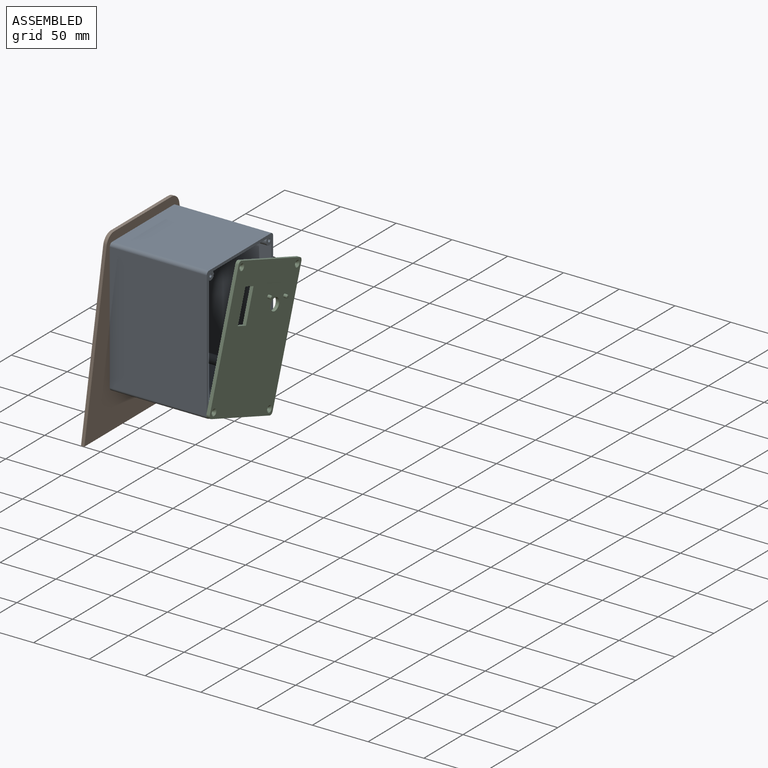
[diagram: assembled view]
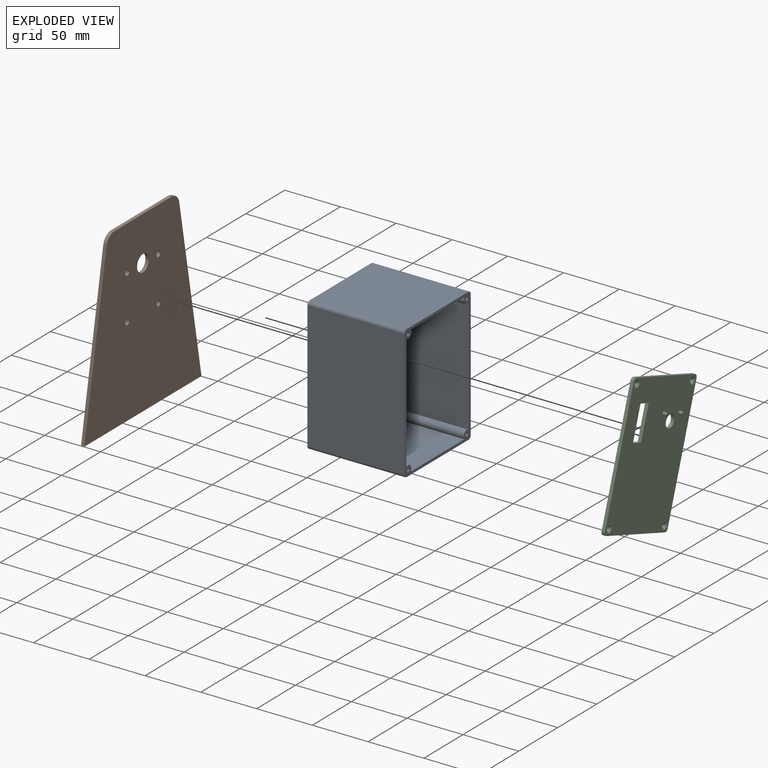
[diagram: exploded view]
GUIDED TOUR — MATED ASSEMBLY (Onshape document 524143315a06c9e09538e839, AutoMate assembly 524143315a06c9e09538e839_eda230ae620e30a8f7436bb0_d0ec72eaa8de58888dcd32df_default)

This assembly has 3 components, labeled P0..P2 below (a component is one placed occurrence of a part; the same part can appear more than once), held together by 2 mates. A mate is a constraint between two components; its type names the relative motion it leaves free:
  FASTENED — locks the two components together rigidly (no relative motion),
  REVOLUTE — leaves rotation about the listed axis free (a hinge).
Axis/direction vectors are unit vectors and 'through' points are millimeter coordinates, both in the assembly's world frame.

MATES
  1. REVOLUTE "Revolute 1": P0 <-> P2, axis (1.000, 0.000, 0.000) through (-23.34, -68.43, 7.96) mm
  2. FASTENED "Fastened 1": P0 <-> P1, direction (-1.000, 0.000, 0.000) through (-110.34, -30.93, 90.46) mm

ASSEMBLY ORDER
  1. P1 — the base component [order verified]
  2. P0 [order verified]
  3. P2 [order verified]
Order-tag legend:
  [order verified] — this step's position reverses a verified removal order: the component was checked to insert without passing through the ones already placed.

Of the 3 components, 1 carries the full construction recipe — the FeatureScript program that regenerates the part's solid from scratch; the rest are supplied as boundary geometry only.
Each toured component is shown spotlighted twice — in the assembled view, then in the exploded view, where a leader line traces a displaced component back to its assembled socket (saturated green if recipe-attached, orange if geometry-only; every other component desaturated gray) — followed by its recipe or geometry summary and the mates that hold it.
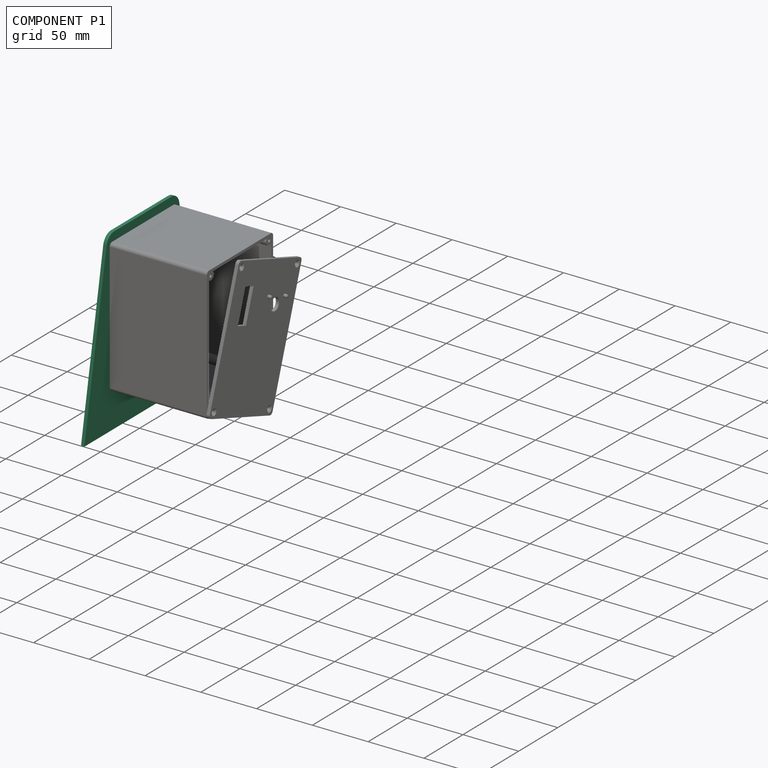
[diagram: component P1 — assembled]
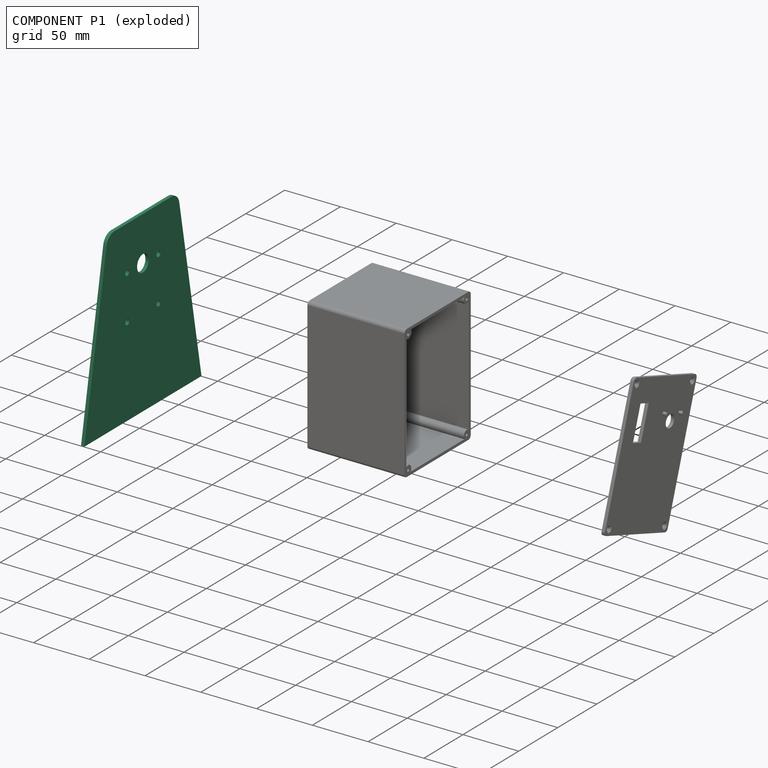
[diagram: component P1 — exploded]
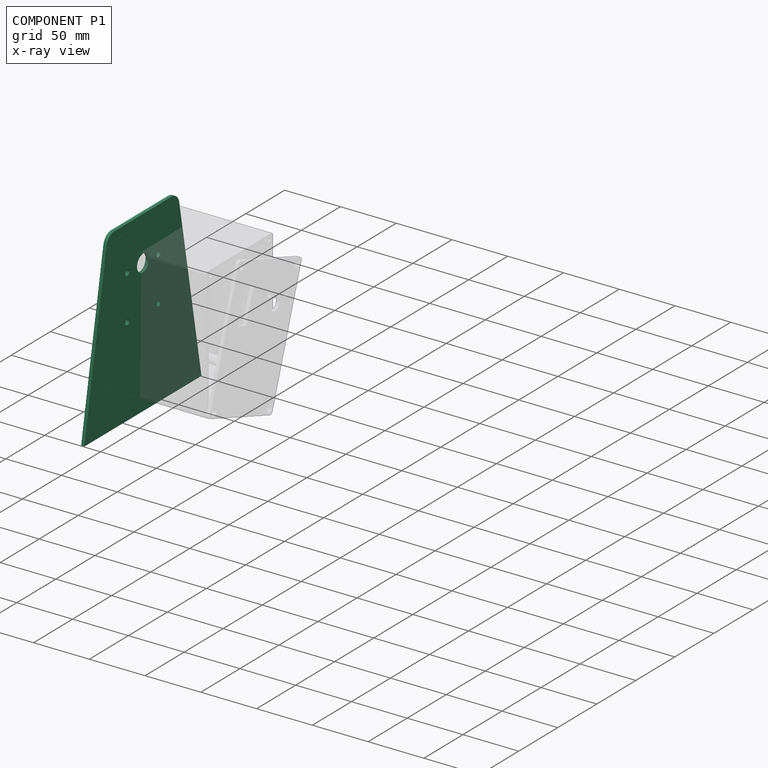
[diagram: component P1 — x-ray view]
COMPONENT P1 — recipe-attached (CADFS 00153528, mesh-verified: the recipe's output STEP matches this component's geometry to below the mesh-comparison resolution (tessellation chordal tolerance ~0.329 mm)).
Held by: FASTENED mate "Fastened 1" to P0.
Construction recipe (FeatureScript — the CAD program that rebuilds this solid; sketch coordinates are in the units given by the * unit suffixes, e.g. mm):

FeatureScript 2599;
import(path : "onshape/std/geometry.fs", version : "2599.0");
import(path : "onshape/std/common.fs", version : "2599.0");
const mm = millimeter;
const VERTEX = EntityType.VERTEX;
const EDGE = EntityType.EDGE;
const FACE = EntityType.FACE;
const BODY = EntityType.BODY;
function v(x, y){return vector(x, y);}
function OD(order){return orderDisambiguation(order);}
function OSD(set){return originalSetDisambiguation(set);}
function TD(topology){return topologyDisambiguation(topology);}
function TDD(query){return trueDependencyDisambiguation(query);}
function sQuery(a, b, c) {return sketchEntityQuery(a, b, c);}

annotation { "Feature Type Name" : "Feature", "Feature Type Description" : "" }
export const myFeature = defineFeature(function(context is Context, id is Id, definition is map)
    precondition{}
    {
        {
            var Q0;
            Q0=qCreatedBy(makeId("Right.planeOp"),FACE);
            var sketch = newSketch(context, id + "F0", { "sketchPlane" : qUnion([Q0])});
            skLineSegment(sketch, "E0", {"start": v(0, 160) * mm, "end": v(-45, 160) * mm});
            skLineSegment(sketch, "E1", {"start": v(-45, 160) * mm, "end": v(-75, 0) * mm});
            skLineSegment(sketch, "E2", {"start": v(-75, 0) * mm, "end": v(0, 0) * mm});
            skLineSegment(sketch, "E3.MirrorCS", {"start": v(75, 0) * mm, "end": v(0, 0) * mm});
            skLineSegment(sketch, "E4.MirrorCS", {"start": v(45, 160) * mm, "end": v(75, 0) * mm});
            skLineSegment(sketch, "E5.MirrorCS", {"start": v(0, 160) * mm, "end": v(45, 160) * mm});
            skCircle(sketch, "E6", {"center": v(0, 120) * mm, "radius": 7.5 * mm});
            skCircle(sketch, "E7", {"center": v(-20, 120) * mm, "radius": 2.5 * mm});
            skCircle(sketch, "E8", {"center": v(-20, 80) * mm, "radius": 2.5 * mm});
            skCircle(sketch, "E9.MirrorC", {"center": v(20, 80) * mm, "radius": 2.5 * mm});
            skCircle(sketch, "E10.MirrorC", {"center": v(20, 120) * mm, "radius": 2.5 * mm});
            skLineSegment(sketch, "E11", {"start": v(0, 131.22) * mm, "end": v(0, 107.25) * mm});
            skLineSegment(sketch, "E12", {"start": v(12.92, 120) * mm, "end": v(-11.03, 120) * mm});
            skLineSegment(sketch, "E13", {"start": v(20, 124.06) * mm, "end": v(20, 114.5) * mm});
            skLineSegment(sketch, "E14", {"start": v(25.59, 120) * mm, "end": v(15.4, 120) * mm});
            skLineSegment(sketch, "E15", {"start": v(20, 84.12) * mm, "end": v(20, 77.5) * mm});
            skLineSegment(sketch, "E16", {"start": v(24.75, 80) * mm, "end": v(15.46, 80) * mm});
            skLineSegment(sketch, "E17", {"start": v(-20, 85.38) * mm, "end": v(-20, 74.52) * mm});
            skLineSegment(sketch, "E18", {"start": v(-13.38, 80) * mm, "end": v(-26.11, 80) * mm});
            skLineSegment(sketch, "E19", {"start": v(-20, 113.48) * mm, "end": v(-20, 127.39) * mm});
            skLineSegment(sketch, "E20", {"start": v(-14.68, 120) * mm, "end": v(-27.27, 120) * mm});
            skSolve(sketch);
        }
        {
            var Q0;
            Q0=makeQuery(id+"F0.imprint","IMPRINT",FACE,{"disambiguationData":[TD([[makeQuery(id+"F0.imprint","IMPRINT",EDGE,{"derivedFrom":sQuery(id+"F0.wireOp",EDGE,"E0")}),1.0]])]});
            extrude(context, id + "F1", {"entities" : qUnion([Q0]), "depth" : 3 * mm});
        }
        {
            var Q0;
            Q0=makeQuery(id+"F1.opExtrude","SWEPT_EDGE",EDGE,{"disambiguationData":[OSD([sQuery(id+"F0.wireOp",EDGE,"E0"),sQuery(id+"F0.wireOp",EDGE,"E1")])]});
            var Q1;
            Q1=makeQuery(id+"F1.opExtrude","SWEPT_EDGE",EDGE,{"disambiguationData":[OSD([sQuery(id+"F0.wireOp",EDGE,"E4.MirrorCS"),sQuery(id+"F0.wireOp",EDGE,"E5.MirrorCS")])]});
            fillet(context, id + "F2", {"entities" : qUnion([Q0, Q1]), "radius" : 10 * mm, "tangentPropagation" : true, "allowEdgeOverflow" : false});
        }
    });
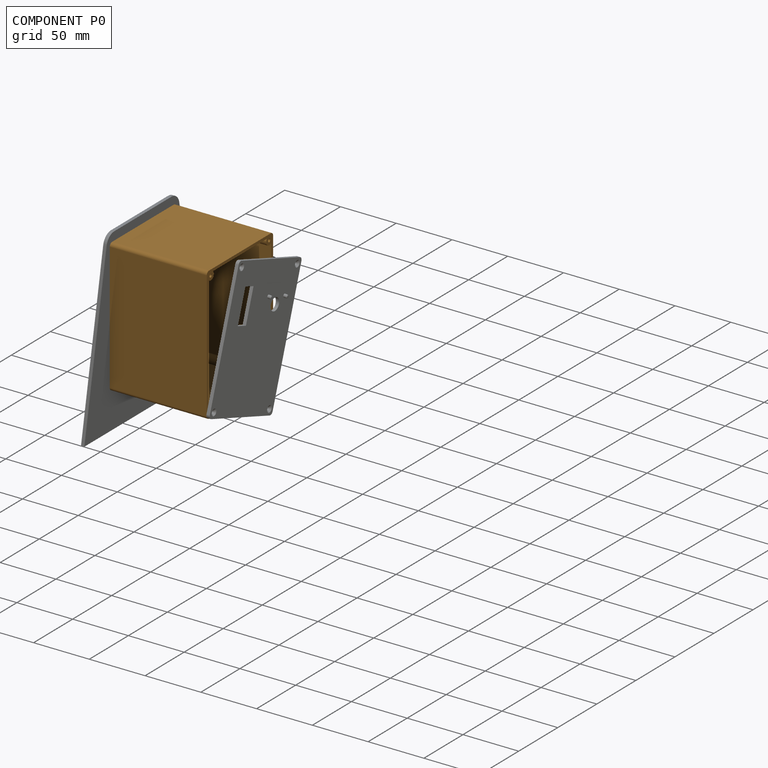
[diagram: component P0 — assembled]
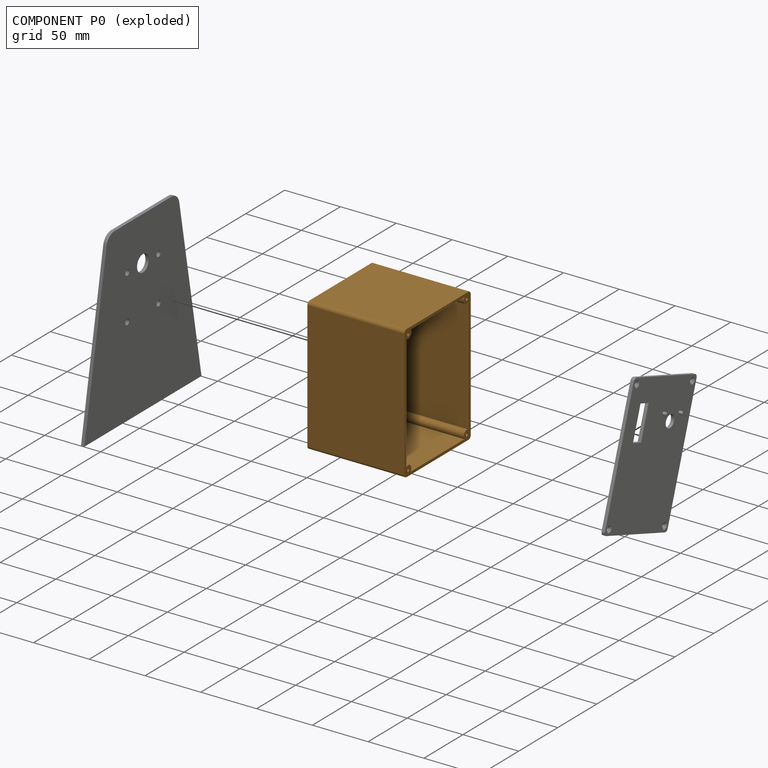
[diagram: component P0 — exploded]
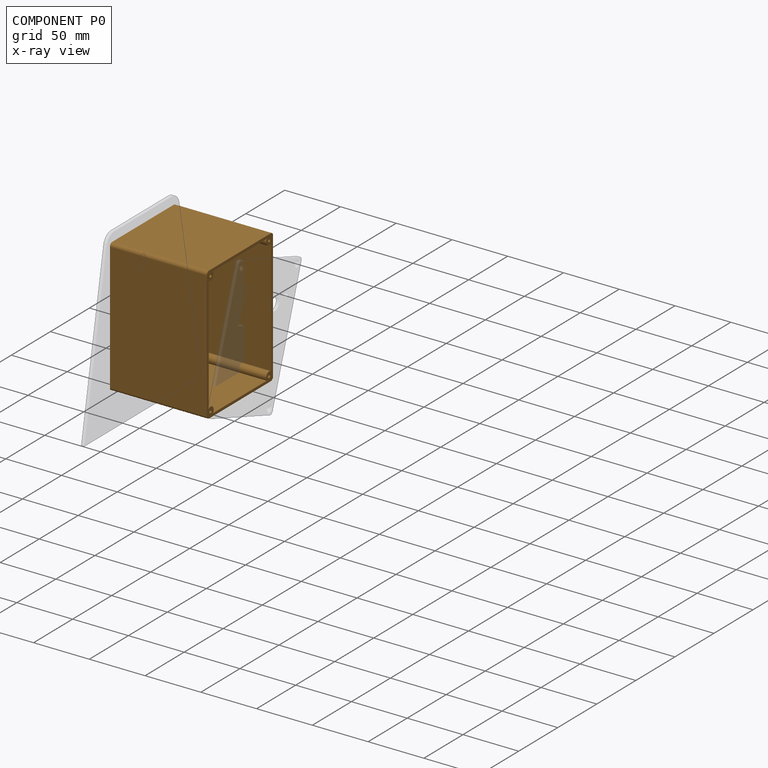
[diagram: component P0 — x-ray view]
COMPONENT P0 — geometry summary (no construction recipe available for this part):
  bounding box: 120.0 x 87.0 x 85.0 mm
  B-rep topology: 1 solid, 32 faces, 158 edges
  volume: 118781 mm^3 (13% of its bounding box)
  symmetry: 2-fold rotationally symmetric about the z axis; mirror-symmetric across its x mid-plane, y mid-plane
Held by: REVOLUTE mate "Revolute 1" to P2; FASTENED mate "Fastened 1" to P1.
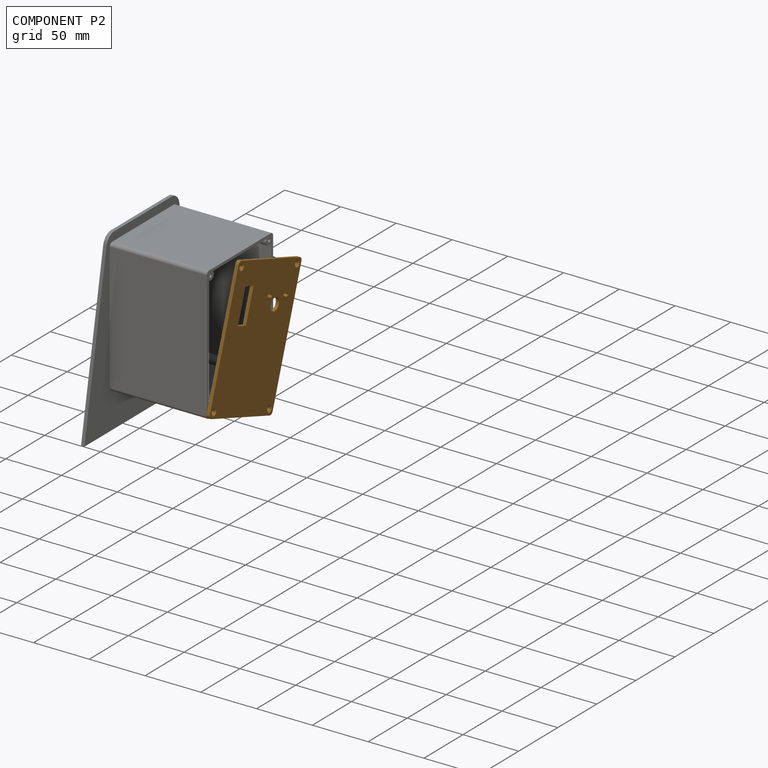
[diagram: component P2 — assembled]
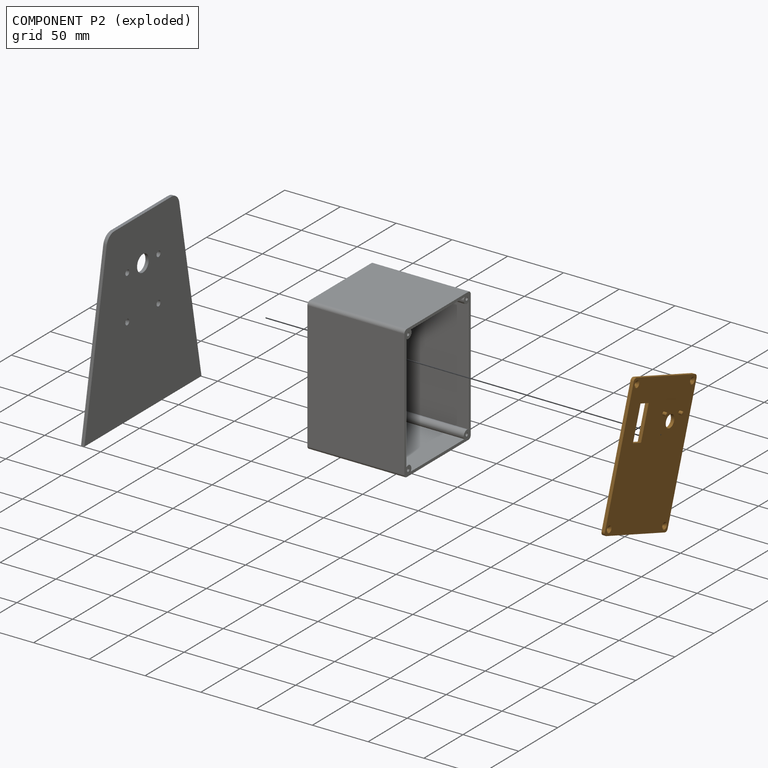
[diagram: component P2 — exploded]
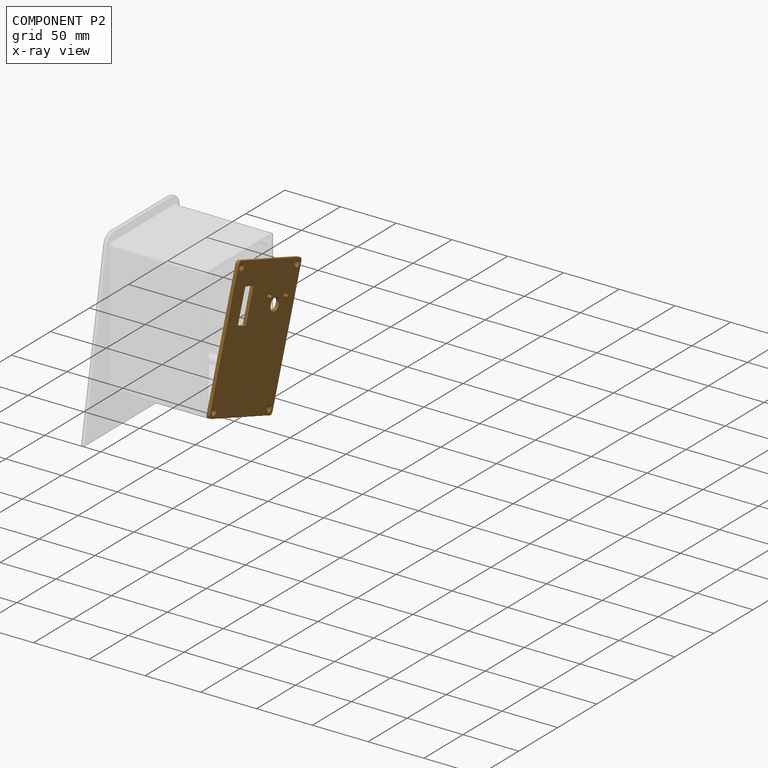
[diagram: component P2 — x-ray view]
COMPONENT P2 — geometry summary (no construction recipe available for this part):
  bounding box: 120.0 x 85.0 x 6.0 mm
  B-rep topology: 1 solid, 29 faces, 152 edges
  volume: 29206 mm^3 (48% of its bounding box)
Held by: REVOLUTE mate "Revolute 1" to P0.
PROVENANCE & LICENSES
Assembly (occurrences, transforms, mates, per-part STEP geometry): AutoMate dataset, Zenodo record 7776208, CC0.
Construction recipes: CADFS (HuggingFace VladPyatov/CADFS, CC-BY-4.0, layered over the ABC dataset), FeatureScript reconstruction programs keyed by ABC model id.
Join: ABC meta listings map ABC model id -> Onshape documentId; within a shared document, parts are matched by geometric signature (bounding-box dims + volume at 0.1% relative tolerance, exact B-rep face/solid counts).
Verification: 1 of this assembly's 3 components carries a recipe attachment, and every attachment is mesh-verified: the CADFS STEP and the AutoMate member STEP were compared as meshes in their shared local frame (symmetric sampled-point-to-mesh distance); worst across the 1 attachment: below the mesh-comparison resolution (tessellation chordal tolerance ~0.329 mm) on a 219 mm part.
Renders: orthographic iso camera (az 35 / el 25); the floor grid conveys scale (grid pitch printed in each image; no ruler). In the exploded view each component is displaced by its stored offset vector: the offsets alone carry the explosion direction (mate normal/axis signs are not orientation cues and do not encode it), and separation distances are assigned per mate-chain, not proportionally to assembly-order depth.
